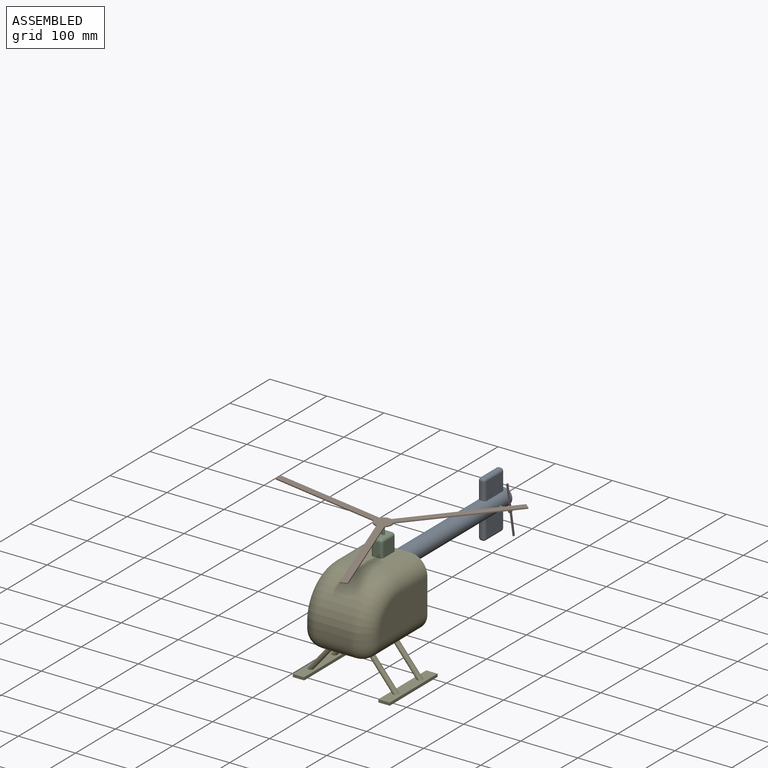
[diagram: assembled view]
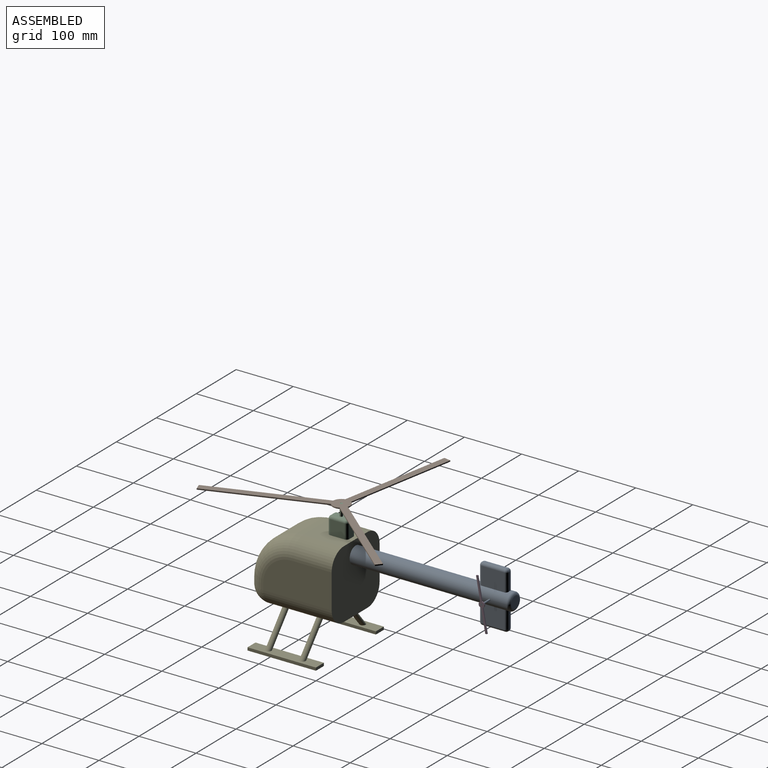
[diagram: assembled view, second angle]
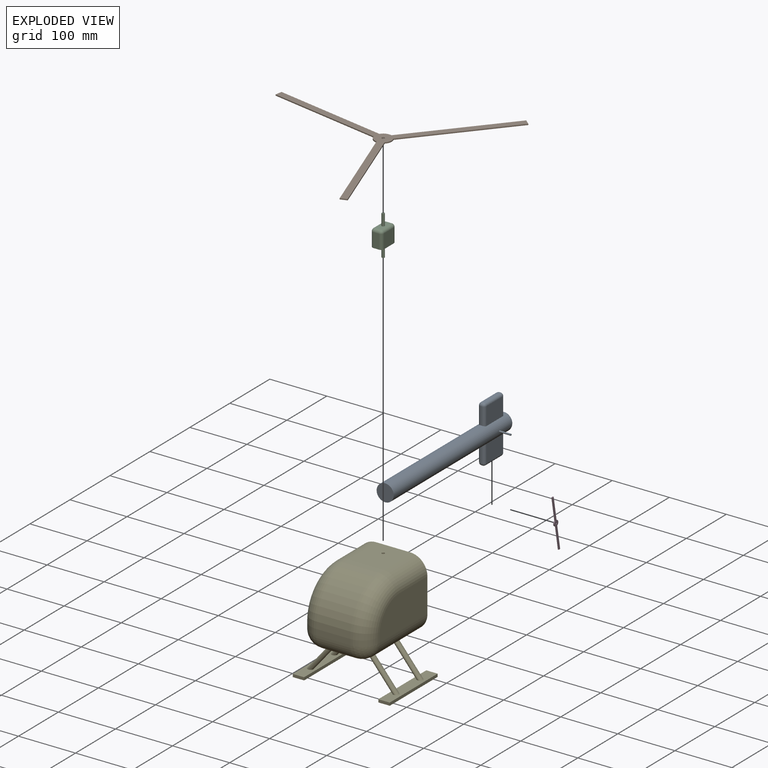
[diagram: exploded view]
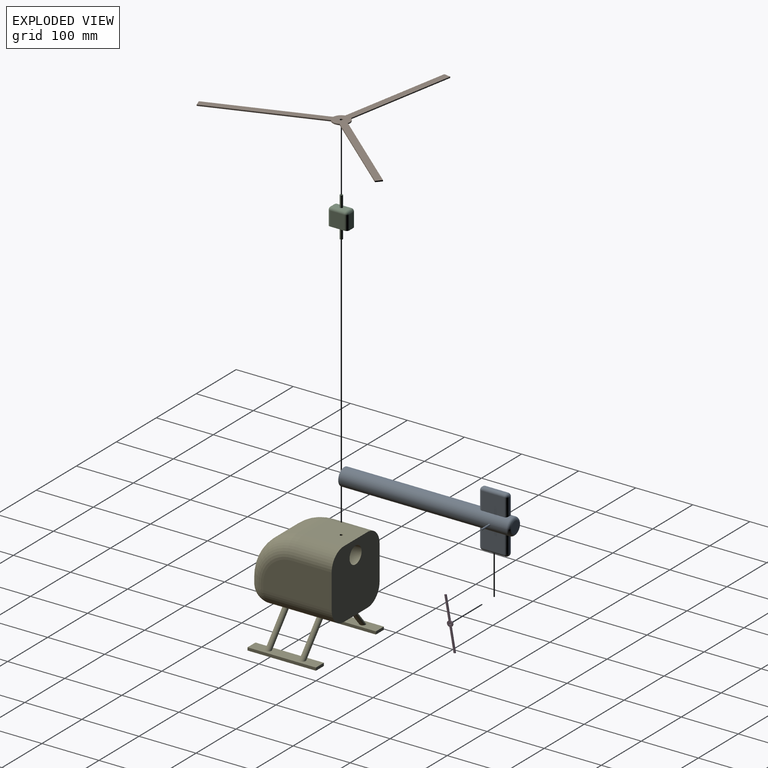
[diagram: exploded view, second angle]
ASSEMBLY  parts=5 mates=4
PART A: 40 faces, bbox 51.2x300x100 mm
  f0: cylinder r=15mm len=295mm, axis (0,-1,0), area 26607mm2, adj f2,f4,f5,f6,f7,f8,f9,f10
  f1: plane 20x20mm, normal (0,1,0), area 314.2mm2, adj f29
  f2: plane 30x30mm, normal (0,-1,0), area 706.9mm2, adj f0
  f3: plane 40x2mm, normal (0,0,1), area 80mm2, adj f20,f21,f25,f26
  f4: plane 30.03x2mm, normal (0,-1,0), area 60mm2, adj f0,f17,f19,f20
  f5: plane 40x31.25mm, normal (-1,0,0), area 1250.1mm2, adj f0,f17,f21,f22
  f6: plane 30.03x2mm, normal (0,1,0), area 60mm2, adj f0,f22,f26,f28
  f7: plane 40x31.25mm, normal (1,0,0), area 1250.1mm2, adj f0,f19,f25,f28
  f8: plane 40x31.25mm, normal (1,0,0), area 1250.1mm2, adj f0,f13,f16,f33
  f9: plane 30.03x2mm, normal (0,1,0), area 60mm2, adj f0,f13,f14,f30
  f10: plane 40x31.25mm, normal (-1,0,0), area 1250.1mm2, adj f0,f14,f15,f34
  f11: plane 30.03x2mm, normal (0,-1,0), area 60mm2, adj f0,f15,f16,f37
  f12: plane 40x2mm, normal (0,0,-1), area 80mm2, adj f30,f33,f34,f37
  f13: cylinder r=5mm len=31.25mm, axis (0,0,-1), area 241mm2, adj f0,f8,f9,f31
  f14: cylinder r=5mm len=31.25mm, axis (0,0,1), area 241mm2, adj f0,f9,f10,f32
  f15: cylinder r=5mm len=31.25mm, axis (0,0,-1), area 241mm2, adj f0,f10,f11,f36
  f16: cylinder r=5mm len=31.25mm, axis (0,0,1), area 241mm2, adj f0,f8,f11,f35
  f17: cylinder r=5mm len=31.25mm, axis (0,0,-1), area 241mm2, adj f0,f4,f5,f18
  f18: sphere r=5mm, area 39.3mm2, adj f17,f20,f21
  f19: cylinder r=5mm len=31.25mm, axis (0,0,1), area 241mm2, adj f0,f4,f7,f23
  f20: cylinder r=5mm len=5mm, axis (-1,0,0), area 15.7mm2, adj f3,f4,f18,f23
  f21: cylinder r=5mm len=40mm, axis (0,1,0), area 314.2mm2, adj f3,f5,f18,f24
  f22: cylinder r=5mm len=31.25mm, axis (0,0,1), area 241mm2, adj f0,f5,f6,f24
  f23: sphere r=5mm, area 39.3mm2, adj f19,f20,f25
  f24: sphere r=5mm, area 39.3mm2, adj f21,f22,f26
  f25: cylinder r=5mm len=40mm, axis (0,-1,0), area 314.2mm2, adj f3,f7,f23,f27
  f26: cylinder r=5mm len=5mm, axis (1,0,0), area 15.7mm2, adj f3,f6,f24,f27
  f27: sphere r=5mm, area 39.3mm2, adj f25,f26,f28
  f28: cylinder r=5mm len=31.25mm, axis (0,0,-1), area 241mm2, adj f0,f6,f7,f27
  f29: torus R=10mm, axis (0,-1,0), area 650.6mm2, adj f0,f1
  f30: cylinder r=5mm len=5mm, axis (-1,0,0), area 15.7mm2, adj f9,f12,f31,f32
  f31: sphere r=5mm, area 39.3mm2, adj f13,f30,f33
  f32: sphere r=5mm, area 39.3mm2, adj f14,f30,f34
  f33: cylinder r=5mm len=40mm, axis (0,1,0), area 314.2mm2, adj f8,f12,f31,f35
  f34: cylinder r=5mm len=40mm, axis (0,-1,0), area 314.2mm2, adj f10,f12,f32,f36
  f35: sphere r=5mm, area 39.3mm2, adj f16,f33,f37
  f36: sphere r=5mm, area 39.3mm2, adj f15,f34,f37
  f37: cylinder r=5mm len=5mm, axis (1,0,0), area 15.7mm2, adj f11,f12,f35,f36
  f38: cylinder r=1.5mm len=20.08mm, axis (-1,0,0), area 188.8mm2, adj f0,f39
  f39: plane 3x3mm, normal (1,0,0), area 7.1mm2, adj f38
PART B: 15 faces, bbox 376.2x325.8x2 mm
  f0: cylinder r=15mm len=15.43mm, axis (0,0,-1), area 38.1mm2, adj f1,f11,f12,f13
  f1: plane 173.21x100mm, normal (-0.5,0.87,0), area 400mm2, adj f0,f2,f12,f13
  f2: plane 10.39x6mm, normal (-0.87,-0.5,0), area 24mm2, adj f1,f3,f12,f13
  f3: plane 173.21x100mm, normal (0.5,-0.87,0), area 400mm2, adj f2,f4,f12,f13
  f4: cylinder r=15mm len=17.81mm, axis (0,0,-1), area 38.1mm2, adj f3,f5,f12,f13
  f5: plane 173.21x100mm, normal (-0.5,-0.87,0), area 400mm2, adj f4,f6,f12,f13
  f6: plane 10.39x6mm, normal (0.87,-0.5,0), area 24mm2, adj f5,f7,f12,f13
  f7: plane 173.21x100mm, normal (0.5,0.87,0), area 400mm2, adj f6,f8,f12,f13
  f8: cylinder r=15mm len=15.43mm, axis (0,0,-1), area 38.1mm2, adj f7,f9,f12,f13
  f9: plane 200x2mm, normal (1,0,0), area 400mm2, adj f8,f10,f12,f13
  f10: plane 12x2mm, normal (0,1,0), area 24mm2, adj f9,f11,f12,f13
  f11: plane 200x2mm, normal (-1,0,0), area 400mm2, adj f0,f10,f12,f13
  f12: plane 376.22x325.82mm, normal (0,0,1), area 7856.9mm2, adj f0,f1,f2,f3,f4,f5,f6,f7
  f13: plane 376.22x325.82mm, normal (0,0,-1), area 7856.9mm2, adj f0,f1,f2,f3,f4,f5,f6,f7
  f14: cylinder r=2.5mm len=5mm, axis (0,0,1), area 31.4mm2, adj f12,f13
PART C: 22 faces, bbox 20x35x70 mm
  f0: plane 25x25mm, normal (1,0,0), area 625mm2, adj f5,f10,f16,f19
  f1: plane 25x10mm, normal (0,1,0), area 250mm2, adj f5,f13,f17,f19
  f2: plane 25x25mm, normal (-1,0,0), area 625mm2, adj f5,f8,f12,f13
  f3: plane 25x10mm, normal (0,-1,0), area 250mm2, adj f5,f8,f10,f11
  f4: plane 25x10mm, normal (0,0,1), area 230.4mm2, adj f6,f11,f12,f16,f17
  f5: plane 35x20mm, normal (0,0,-1), area 658.9mm2, adj f0,f1,f2,f3,f8,f10,f13,f19
  f6: cylinder r=2.5mm len=20mm, axis (0,0,-1), area 314.2mm2, adj f4,f7
  f7: plane 5x5mm, normal (0,0,1), area 19.6mm2, adj f6
  f8: cylinder r=5mm len=25mm, axis (0,0,-1), area 196.3mm2, adj f2,f3,f5,f9
  f9: sphere r=5mm, area 39.3mm2, adj f8,f11,f12
  f10: cylinder r=5mm len=25mm, axis (0,0,1), area 196.3mm2, adj f0,f3,f5,f14
  f11: cylinder r=5mm len=10mm, axis (-1,0,0), area 78.5mm2, adj f3,f4,f9,f14
  f12: cylinder r=5mm len=25mm, axis (0,1,0), area 196.3mm2, adj f2,f4,f9,f15
  f13: cylinder r=5mm len=25mm, axis (0,0,1), area 196.3mm2, adj f1,f2,f5,f15
  f14: sphere r=5mm, area 39.3mm2, adj f10,f11,f16
  f15: sphere r=5mm, area 39.3mm2, adj f12,f13,f17
  f16: cylinder r=5mm len=25mm, axis (0,-1,0), area 196.3mm2, adj f0,f4,f14,f18
  f17: cylinder r=5mm len=10mm, axis (1,0,0), area 78.5mm2, adj f1,f4,f15,f18
  f18: sphere r=5mm, area 39.3mm2, adj f16,f17,f19
  f19: cylinder r=5mm len=25mm, axis (0,0,-1), area 196.3mm2, adj f0,f1,f5,f18
  f20: cylinder r=2.5mm len=20mm, axis (0,0,1), area 314.2mm2, adj f5,f21
  f21: plane 5x5mm, normal (0,0,-1), area 19.6mm2, adj f20
PART D: 11 faces, bbox 10x90x2 mm
  f0: plane 40.23x2mm, normal (1,0,0), area 80.5mm2, adj f1,f7,f8,f9
  f1: cylinder r=5mm len=9.54mm, axis (0,0,-1), area 25.3mm2, adj f0,f2,f8,f9
  f2: plane 40.23x2mm, normal (1,0,0), area 80.5mm2, adj f1,f3,f8,f9
  f3: plane 3x2mm, normal (0,1,0), area 6mm2, adj f2,f4,f8,f9
  f4: plane 40.23x2mm, normal (-1,0,0), area 80.5mm2, adj f3,f5,f8,f9
  f5: cylinder r=5mm len=9.54mm, axis (0,0,-1), area 25.3mm2, adj f4,f6,f8,f9
  f6: plane 40.23x2mm, normal (-1,0,0), area 80.5mm2, adj f5,f7,f8,f9
  f7: plane 3x2mm, normal (0,-1,0), area 6mm2, adj f0,f6,f8,f9
  f8: plane 90x10mm, normal (0,0,1), area 311.9mm2, adj f0,f1,f2,f3,f4,f5,f6,f7
  f9: plane 90x10mm, normal (0,0,-1), area 311.9mm2, adj f0,f1,f2,f3,f4,f5,f6,f7
  f10: cylinder r=1.5mm len=3mm, axis (0,0,1), area 18.8mm2, adj f8,f9
PART E: 42 faces, bbox 171.4x158x186.6 mm
  f0: plane 120x60mm, normal (1,0,0), area 6663.5mm2, adj f1,f8,f9,f10,f12
  f1: plane 120x120mm, normal (0,1,0), area 12920.6mm2, adj f0,f2,f4,f5,f8,f12,f13,f17
  f2: plane 120x60mm, normal (-1,0,0), area 6663.5mm2, adj f1,f13,f14,f15,f17
  f3: plane 60x10mm, normal (0,-1,0), area 600mm2, adj f6,f7,f10,f15
  f4: plane 70x60mm, normal (0,0,1), area 4180.4mm2, adj f1,f6,f8,f13,f40
  f5: plane 121.42x61.42mm, normal (0,0,-1), area 7042.9mm2, adj f1,f7,f12,f17,f21,f23,f25,f27
  f6: cylinder r=80mm len=80mm, axis (-1,0,0), area 7539.8mm2, adj f3,f4,f9,f14
  f7: cylinder r=30mm len=60mm, axis (1,0,0), area 2827.4mm2, adj f3,f5,f11,f16
  f8: cylinder r=30mm len=70mm, axis (0,-1,0), area 3298.7mm2, adj f0,f1,f4,f9
  f9: torus R=50mm, axis (-1,0,0), area 5114.8mm2, adj f0,f6,f8,f10
  f10: cylinder r=30mm len=30mm, axis (0,0,1), area 471.2mm2, adj f0,f3,f9,f11
  f11: sphere r=30mm, area 1413.7mm2, adj f7,f10,f12
  f12: cylinder r=30mm len=120mm, axis (0,1,0), area 5654.9mm2, adj f0,f1,f5,f11,f20,f22
  f13: cylinder r=30mm len=70mm, axis (0,1,0), area 3298.7mm2, adj f1,f2,f4,f14
  f14: torus R=50mm, axis (-1,0,0), area 5114.8mm2, adj f2,f6,f13,f15
  f15: cylinder r=30mm len=30mm, axis (0,0,-1), area 471.2mm2, adj f2,f3,f14,f16
  f16: sphere r=30mm, area 1413.7mm2, adj f7,f15,f17
  f17: cylinder r=30mm len=120mm, axis (0,-1,0), area 5654.9mm2, adj f1,f2,f5,f16,f24,f26
  f18: cylinder r=15mm len=30mm, axis (0,1,0), area 1885mm2, adj f1,f19
  f19: plane 30x30mm, normal (0,1,0), area 706.9mm2, adj f18
  f20: plane 11.42x6.42mm, normal (0,0,1), area 39.3mm2, adj f12,f21
  f21: bspline ~55x53.62mm, area 1954.6mm2, adj f5,f20,f39
  f22: plane 11.42x6.42mm, normal (0,0,1), area 39.3mm2, adj f12,f23
  f23: bspline ~55x53.62mm, area 1954.6mm2, adj f5,f22,f39
  f24: plane 11.42x6.42mm, normal (0,0,1), area 39.3mm2, adj f17,f25
  f25: bspline ~55x53.62mm, area 1954.6mm2, adj f5,f24,f33
  f26: plane 11.42x6.42mm, normal (0,0,1), area 39.3mm2, adj f17,f27
  f27: bspline ~55x53.62mm, area 1954.6mm2, adj f5,f26,f33
  f28: plane 120x5mm, normal (-1,0,0), area 600mm2, adj f29,f31,f32,f33
  f29: plane 20x5mm, normal (0,1,0), area 100mm2, adj f28,f30,f32,f33
  f30: plane 120x5mm, normal (1,0,0), area 600mm2, adj f29,f31,f32,f33
  f31: plane 20x5mm, normal (0,-1,0), area 100mm2, adj f28,f30,f32,f33
  f32: plane 120x20mm, normal (0,0,-1), area 2400mm2, adj f28,f29,f30,f31
  f33: plane 121.39x21.39mm, normal (0,0,1), area 2242.9mm2, adj f25,f27,f28,f29,f30,f31
  f34: plane 20x5mm, normal (0,1,0), area 100mm2, adj f35,f37,f38,f39
  f35: plane 120x5mm, normal (1,0,0), area 600mm2, adj f34,f36,f38,f39
  f36: plane 20x5mm, normal (0,-1,0), area 100mm2, adj f35,f37,f38,f39
  f37: plane 120x5mm, normal (-1,0,0), area 600mm2, adj f34,f36,f38,f39
  f38: plane 120x20mm, normal (0,0,-1), area 2400mm2, adj f34,f35,f36,f37
  f39: plane 121.39x21.39mm, normal (0,0,1), area 2242.9mm2, adj f21,f23,f34,f35,f36,f37
  f40: cylinder r=2.5mm len=20mm, axis (0,0,1), area 314.2mm2, adj f4,f41
  f41: plane 5x5mm, normal (0,0,1), area 19.6mm2, adj f40
PLACE A t=(4.54,82.75,72.69)mm
PLACE B rot(axis=(0,0,1),79.6deg) t=(4.54,77.75,145.69)mm
PLACE C t=(4.54,77.75,97.69)mm
PLACE D rot(axis=(-0.54,0.65,-0.54),114.2deg) t=(37.54,347.75,72.69)mm
PLACE E t=(4.54,27.75,-22.31)mm fixed
MATE fastened E.f18 <-> A.f0  axis (0,1,0) through (4.54,82.75,72.69)mm
MATE revolute D.f1 <-> A.f38  axis (1,0,0) through (39.54,347.75,72.69)mm
MATE fastened E.f40 <-> C.f6  axis (0,0,1) through (4.54,77.75,77.69)mm
MATE revolute B.f0 <-> C.f6  axis (0,0,1) through (4.54,77.75,147.69)mm
